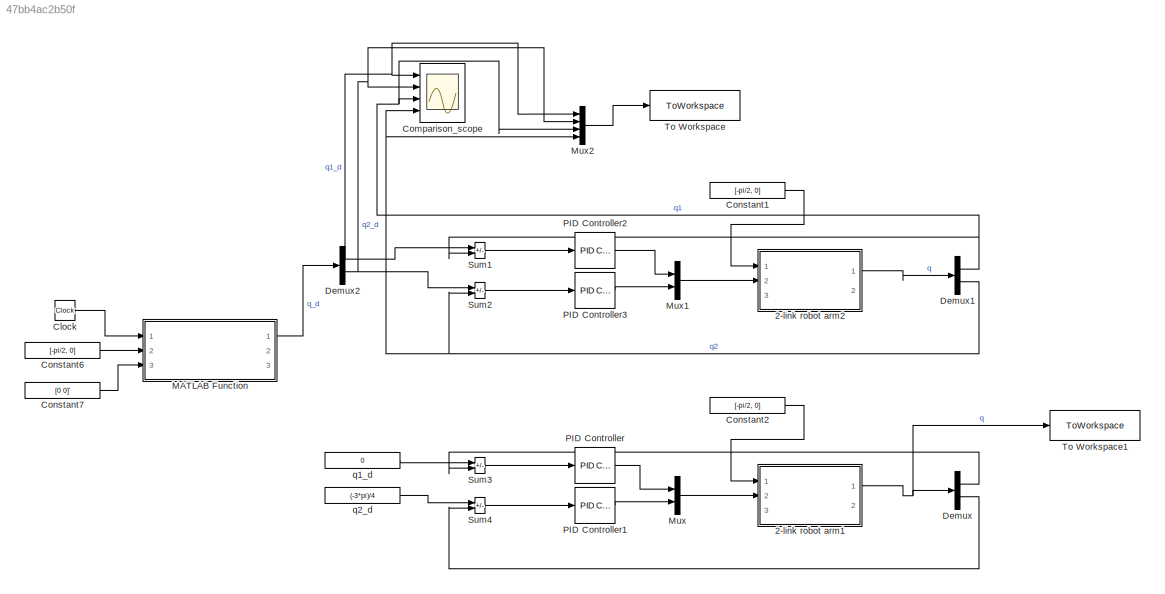
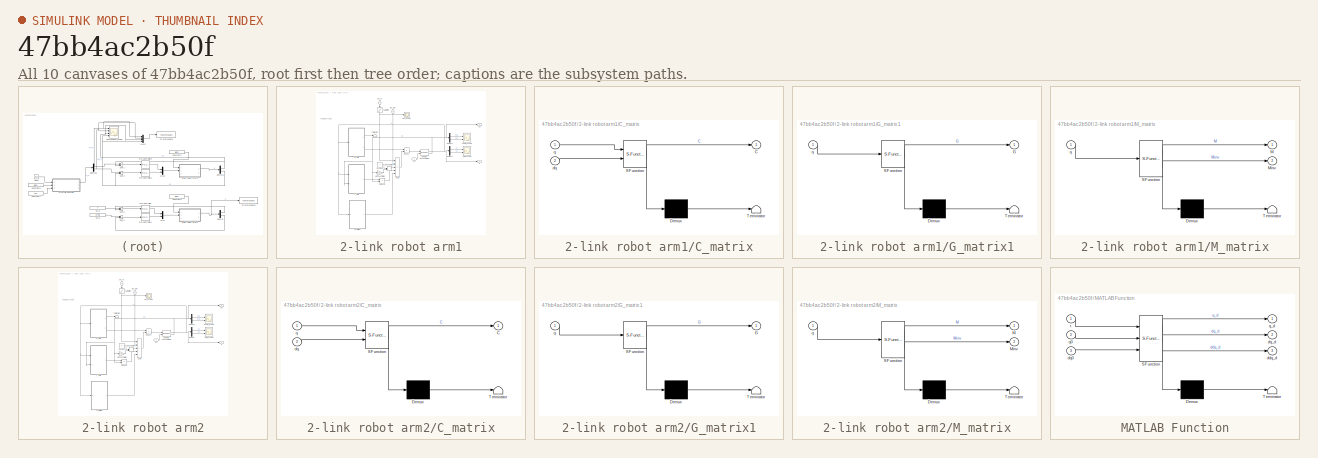
[diagram: thumbnail index - all 10 canvases of the model, root first then tree order]
MODEL slx_47bb4ac2b50f
KIND model
CONFIG AbsTol = auto
CONFIG EnableMultiTasking = off
CONFIG FixedStep = 1e-3
CONFIG MaxStep = auto
CONFIG MinStep = auto
CONFIG RelTol = 1e-3
CONFIG SampleTimeConstraint = Unconstrained
CONFIG SolverName = ode4
CONFIG StartTime = 0.0
CONFIG StopTime = 25
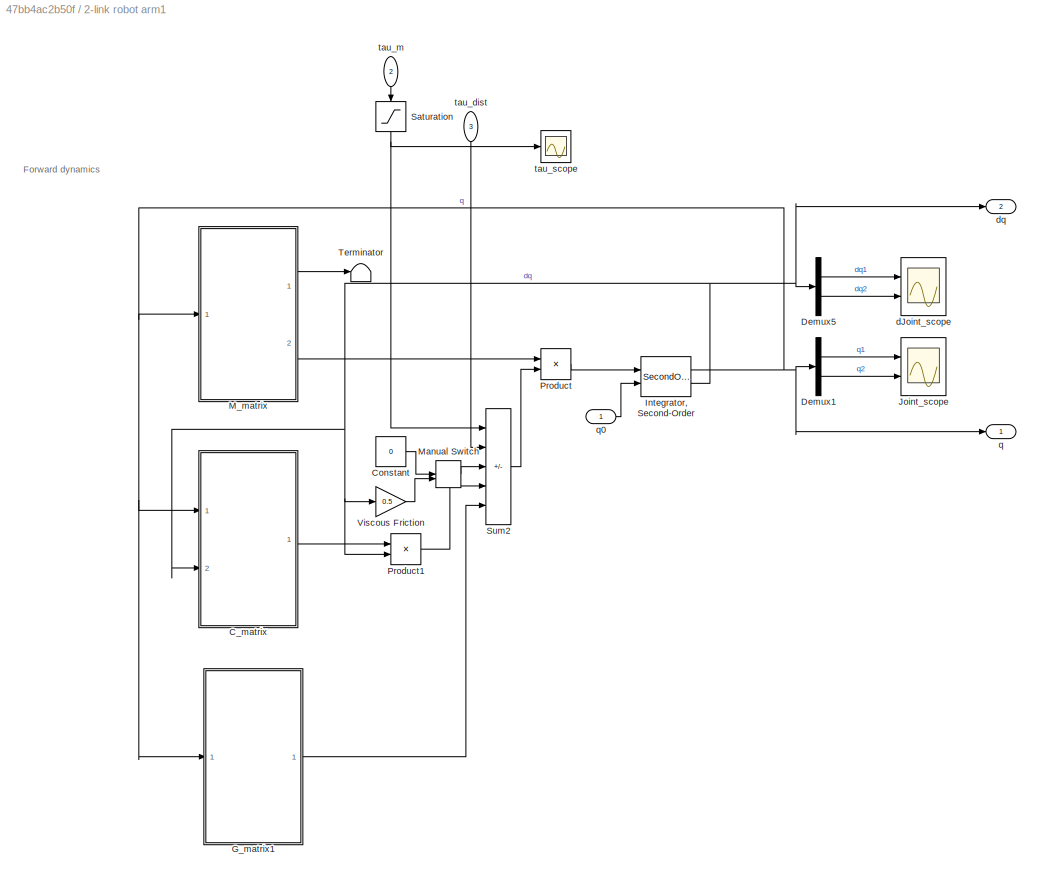
BLOCK [SubSystem] 2-link robot arm1
  Ports = [3, 2]
  RequestExecContextInheritance = off
BLOCK [SubSystem] 2-link robot arm1/C_matrix
  ErrorFcn = Stateflow.Translate.translate
  PermitHierarchicalResolution = ExplicitOnly
  Ports = [2, 1]
  RequestExecContextInheritance = off
  SFBlockType = MATLAB Function
  TreatAsAtomicUnit = on
BLOCK [Demux] 2-link robot arm1/C_matrix/ Demux 
  Outputs = 1
  Ports = [1, 1]
BLOCK [S-Function] 2-link robot arm1/C_matrix/ SFunction 
  EnableBusSupport = on
  FunctionName = sf_sfun
  Parameters = l1,lc2,m2
  PortCounts = [2 2]
  Ports = [2, 2]
  SFcnIsStateOwnerBlock = off
  SFunctionDeploymentMode = off
  Tag = Stateflow S-Function 1
BLOCK [Terminator] 2-link robot arm1/C_matrix/ Terminator 
BLOCK [Outport] 2-link robot arm1/C_matrix/C
  VectorParamsAs1DForOutWhenUnconnected = off
BLOCK [Inport] 2-link robot arm1/C_matrix/dq
  Port = 2
BLOCK [Inport] 2-link robot arm1/C_matrix/q
BLOCK [Constant] 2-link robot arm1/Constant
  Value = 0
BLOCK [Demux] 2-link robot arm1/Demux1
  Outputs = 2
  Ports = [1, 2]
BLOCK [Demux] 2-link robot arm1/Demux5
  Outputs = 2
  Ports = [1, 2]
BLOCK [SubSystem] 2-link robot arm1/G_matrix1
  ErrorFcn = Stateflow.Translate.translate
  PermitHierarchicalResolution = ExplicitOnly
  Ports = [1, 1]
  RequestExecContextInheritance = off
  SFBlockType = MATLAB Function
  TreatAsAtomicUnit = on
BLOCK [Demux] 2-link robot arm1/G_matrix1/ Demux 
  Outputs = 1
  Ports = [1, 1]
BLOCK [S-Function] 2-link robot arm1/G_matrix1/ SFunction 
  EnableBusSupport = on
  FunctionName = sf_sfun
  Parameters = g,l1,lc1,lc2,m1,m2
  PortCounts = [1 2]
  Ports = [1, 2]
  SFcnIsStateOwnerBlock = off
  SFunctionDeploymentMode = off
  Tag = Stateflow S-Function 2
BLOCK [Terminator] 2-link robot arm1/G_matrix1/ Terminator 
BLOCK [Outport] 2-link robot arm1/G_matrix1/G
  VectorParamsAs1DForOutWhenUnconnected = off
BLOCK [Inport] 2-link robot arm1/G_matrix1/q
BLOCK [SecondOrderIntegrator] 2-link robot arm1/Integrator, Second-Order
  ICSourceX = external
  Ports = [2, 2]
BLOCK [Scope] 2-link robot arm1/Joint_scope
  Floating = off
  NumInputPorts = 2
  Ports = [2]
  ScopeSpecificationString = Simulink.scopes.TimeScopeBlockCfg('CurrentConfiguration', extmgr.ConfigurationSet(extmgr.Configuration('Core','General UI',true,'FigureColor',[0 0 0]),extmgr.Configuration('Core','Source UI',true),extmgr.Configuration('Sources','WiredSimulink',true),extmgr.Configuration('Visuals','Time Domain',true,'SerializedDisplays',{struct('MinYLimReal','-4.92673','MaxYLimReal','3.00396','YLabelReal','q_i(t)',...<+1818ch>
BLOCK [SubSystem] 2-link robot arm1/M_matrix
  ErrorFcn = Stateflow.Translate.translate
  PermitHierarchicalResolution = ExplicitOnly
  Ports = [1, 2]
  RequestExecContextInheritance = off
  SFBlockType = MATLAB Function
  TreatAsAtomicUnit = on
BLOCK [Demux] 2-link robot arm1/M_matrix/ Demux 
  Outputs = 1
  Ports = [1, 1]
BLOCK [S-Function] 2-link robot arm1/M_matrix/ SFunction 
  EnableBusSupport = on
  FunctionName = sf_sfun
  Parameters = I1zz,I2zz,l1,lc1,lc2,m1,m2
  PortCounts = [1 3]
  Ports = [1, 3]
  SFcnIsStateOwnerBlock = off
  SFunctionDeploymentMode = off
  Tag = Stateflow S-Function 3
BLOCK [Terminator] 2-link robot arm1/M_matrix/ Terminator 
BLOCK [Outport] 2-link robot arm1/M_matrix/M
  VectorParamsAs1DForOutWhenUnconnected = off
BLOCK [Outport] 2-link robot arm1/M_matrix/Minv
  Port = 2
  VectorParamsAs1DForOutWhenUnconnected = off
BLOCK [Inport] 2-link robot arm1/M_matrix/q
BLOCK [ManualSwitch] 2-link robot arm1/Manual Switch
BLOCK [Product] 2-link robot arm1/Product
  Multiplication = Matrix(*)
  Ports = [2, 1]
BLOCK [Product] 2-link robot arm1/Product1
  Multiplication = Matrix(*)
  Ports = [2, 1]
BLOCK [Saturate] 2-link robot arm1/Saturation
  LowerLimit = tau_down
  NameLocation = left
  UpperLimit = tau_up
BLOCK [Sum] 2-link robot arm1/Sum2
  IconShape = rectangular
  Inputs = ++|---
  Ports = [5, 1]
BLOCK [Terminator] 2-link robot arm1/Terminator
BLOCK [Gain] 2-link robot arm1/Viscous Friction
  Gain = 0.5
BLOCK [Scope] 2-link robot arm1/dJoint_scope
  Floating = off
  NumInputPorts = 2
  Ports = [2]
  ScopeSpecificationString = Simulink.scopes.TimeScopeBlockCfg('CurrentConfiguration', extmgr.ConfigurationSet(extmgr.Configuration('Core','General UI',true,'FigureColor',[0 0 0]),extmgr.Configuration('Core','Source UI',true),extmgr.Configuration('Sources','WiredSimulink',true,'DataLoggingVariableName','ScopeData1'),extmgr.Configuration('Visuals','Time Domain',true,'SerializedDisplays',{struct('MinYLimReal','-23.61564','MaxYL...<+1865ch>
BLOCK [Outport] 2-link robot arm1/dq 
  Port = 2
BLOCK [Outport] 2-link robot arm1/q 
BLOCK [Inport] 2-link robot arm1/q0
BLOCK [Inport] 2-link robot arm1/tau_dist
  NameLocation = left
  Port = 3
BLOCK [Inport] 2-link robot arm1/tau_m
  NameLocation = left
  Port = 2
BLOCK [Scope] 2-link robot arm1/tau_scope
  Floating = off
  NumInputPorts = 1
  Ports = [1]
  ScopeSpecificationString = Simulink.scopes.TimeScopeBlockCfg('CurrentConfiguration', extmgr.ConfigurationSet(extmgr.Configuration('Core','General UI',true),extmgr.Configuration('Core','Source UI',true),extmgr.Configuration('Sources','WiredSimulink',true,'DataLoggingVariableName','ScopeData3'),extmgr.Configuration('Visuals','Time Domain',true,'SerializedDisplays',{struct('MinYLimReal','-28.47068','MaxYLimReal','20.6167','YLa...<+1479ch>
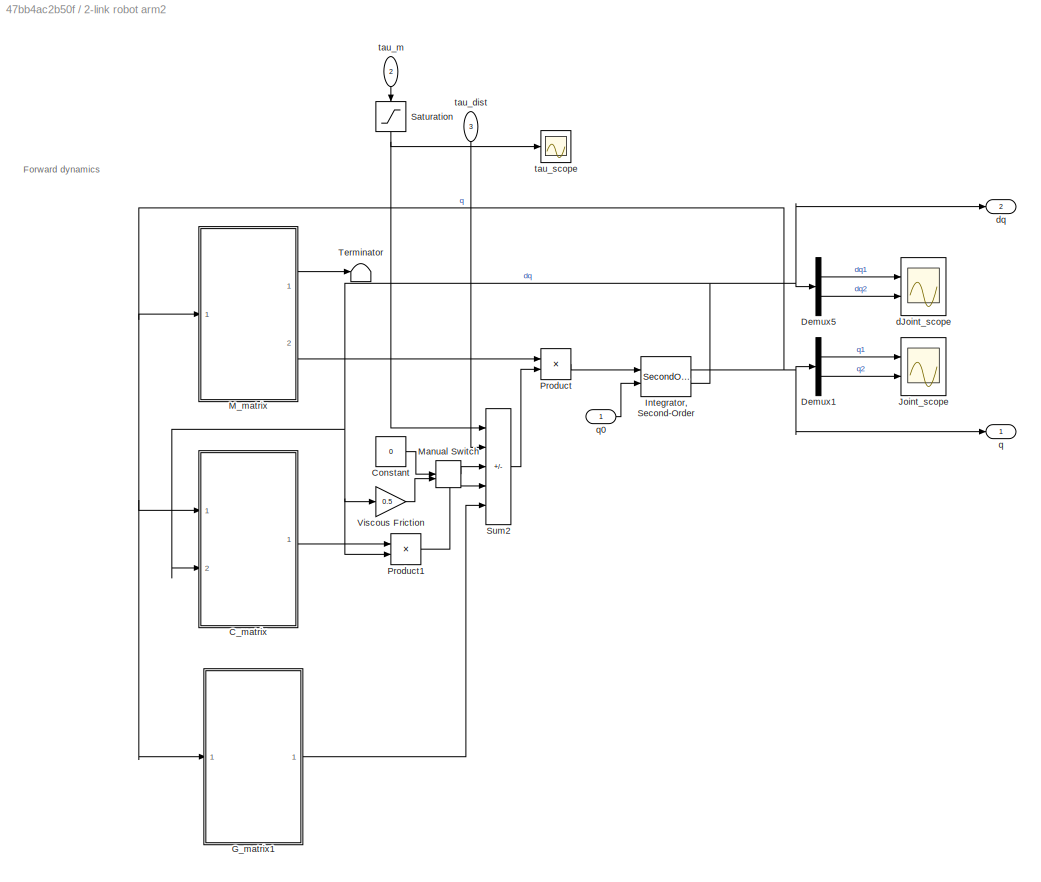
BLOCK [SubSystem] 2-link robot arm2
  Ports = [3, 2]
  RequestExecContextInheritance = off
BLOCK [SubSystem] 2-link robot arm2/C_matrix
  ErrorFcn = Stateflow.Translate.translate
  PermitHierarchicalResolution = ExplicitOnly
  Ports = [2, 1]
  RequestExecContextInheritance = off
  SFBlockType = MATLAB Function
  TreatAsAtomicUnit = on
BLOCK [Demux] 2-link robot arm2/C_matrix/ Demux 
  Outputs = 1
  Ports = [1, 1]
BLOCK [S-Function] 2-link robot arm2/C_matrix/ SFunction 
  EnableBusSupport = on
  FunctionName = sf_sfun
  Parameters = l1,lc2,m2
  PortCounts = [2 2]
  Ports = [2, 2]
  SFcnIsStateOwnerBlock = off
  SFunctionDeploymentMode = off
  Tag = Stateflow S-Function 4
BLOCK [Terminator] 2-link robot arm2/C_matrix/ Terminator 
BLOCK [Outport] 2-link robot arm2/C_matrix/C
  VectorParamsAs1DForOutWhenUnconnected = off
BLOCK [Inport] 2-link robot arm2/C_matrix/dq
  Port = 2
BLOCK [Inport] 2-link robot arm2/C_matrix/q
BLOCK [Constant] 2-link robot arm2/Constant
  Value = 0
BLOCK [Demux] 2-link robot arm2/Demux1
  Outputs = 2
  Ports = [1, 2]
BLOCK [Demux] 2-link robot arm2/Demux5
  Outputs = 2
  Ports = [1, 2]
BLOCK [SubSystem] 2-link robot arm2/G_matrix1
  ErrorFcn = Stateflow.Translate.translate
  PermitHierarchicalResolution = ExplicitOnly
  Ports = [1, 1]
  RequestExecContextInheritance = off
  SFBlockType = MATLAB Function
  TreatAsAtomicUnit = on
BLOCK [Demux] 2-link robot arm2/G_matrix1/ Demux 
  Outputs = 1
  Ports = [1, 1]
BLOCK [S-Function] 2-link robot arm2/G_matrix1/ SFunction 
  EnableBusSupport = on
  FunctionName = sf_sfun
  Parameters = g,l1,lc1,lc2,m1,m2
  PortCounts = [1 2]
  Ports = [1, 2]
  SFcnIsStateOwnerBlock = off
  SFunctionDeploymentMode = off
  Tag = Stateflow S-Function 5
BLOCK [Terminator] 2-link robot arm2/G_matrix1/ Terminator 
BLOCK [Outport] 2-link robot arm2/G_matrix1/G
  VectorParamsAs1DForOutWhenUnconnected = off
BLOCK [Inport] 2-link robot arm2/G_matrix1/q
BLOCK [SecondOrderIntegrator] 2-link robot arm2/Integrator, Second-Order
  ICSourceX = external
  Ports = [2, 2]
BLOCK [Scope] 2-link robot arm2/Joint_scope
  Floating = off
  NumInputPorts = 2
  Ports = [2]
  ScopeSpecificationString = Simulink.scopes.TimeScopeBlockCfg('CurrentConfiguration', extmgr.ConfigurationSet(extmgr.Configuration('Core','General UI',true,'FigureColor',[0 0 0]),extmgr.Configuration('Core','Source UI',true),extmgr.Configuration('Sources','WiredSimulink',true),extmgr.Configuration('Visuals','Time Domain',true,'SerializedDisplays',{struct('MinYLimReal','-4.92673','MaxYLimReal','3.00396','YLabelReal','q_i(t)',...<+1834ch>
BLOCK [SubSystem] 2-link robot arm2/M_matrix
  ErrorFcn = Stateflow.Translate.translate
  PermitHierarchicalResolution = ExplicitOnly
  Ports = [1, 2]
  RequestExecContextInheritance = off
  SFBlockType = MATLAB Function
  TreatAsAtomicUnit = on
BLOCK [Demux] 2-link robot arm2/M_matrix/ Demux 
  Outputs = 1
  Ports = [1, 1]
BLOCK [S-Function] 2-link robot arm2/M_matrix/ SFunction 
  EnableBusSupport = on
  FunctionName = sf_sfun
  Parameters = I1zz,I2zz,l1,lc1,lc2,m1,m2
  PortCounts = [1 3]
  Ports = [1, 3]
  SFcnIsStateOwnerBlock = off
  SFunctionDeploymentMode = off
  Tag = Stateflow S-Function 6
BLOCK [Terminator] 2-link robot arm2/M_matrix/ Terminator 
BLOCK [Outport] 2-link robot arm2/M_matrix/M
  VectorParamsAs1DForOutWhenUnconnected = off
BLOCK [Outport] 2-link robot arm2/M_matrix/Minv
  Port = 2
  VectorParamsAs1DForOutWhenUnconnected = off
BLOCK [Inport] 2-link robot arm2/M_matrix/q
BLOCK [ManualSwitch] 2-link robot arm2/Manual Switch
BLOCK [Product] 2-link robot arm2/Product
  Multiplication = Matrix(*)
  Ports = [2, 1]
BLOCK [Product] 2-link robot arm2/Product1
  Multiplication = Matrix(*)
  Ports = [2, 1]
BLOCK [Saturate] 2-link robot arm2/Saturation
  LowerLimit = tau_down
  NameLocation = left
  UpperLimit = tau_up
BLOCK [Sum] 2-link robot arm2/Sum2
  IconShape = rectangular
  Inputs = ++|---
  Ports = [5, 1]
BLOCK [Terminator] 2-link robot arm2/Terminator
BLOCK [Gain] 2-link robot arm2/Viscous Friction
  Gain = 0.5
BLOCK [Scope] 2-link robot arm2/dJoint_scope
  Floating = off
  NumInputPorts = 2
  Ports = [2]
  ScopeSpecificationString = Simulink.scopes.TimeScopeBlockCfg('CurrentConfiguration', extmgr.ConfigurationSet(extmgr.Configuration('Core','General UI',true,'FigureColor',[0 0 0]),extmgr.Configuration('Core','Source UI',true),extmgr.Configuration('Sources','WiredSimulink',true,'DataLoggingVariableName','ScopeData1'),extmgr.Configuration('Visuals','Time Domain',true,'SerializedDisplays',{struct('MinYLimReal','-23.61564','MaxYL...<+1865ch>
BLOCK [Outport] 2-link robot arm2/dq 
  Port = 2
BLOCK [Outport] 2-link robot arm2/q 
BLOCK [Inport] 2-link robot arm2/q0
BLOCK [Inport] 2-link robot arm2/tau_dist
  NameLocation = left
  Port = 3
BLOCK [Inport] 2-link robot arm2/tau_m
  NameLocation = left
  Port = 2
BLOCK [Scope] 2-link robot arm2/tau_scope
  Floating = off
  NumInputPorts = 1
  Ports = [1]
  ScopeSpecificationString = Simulink.scopes.TimeScopeBlockCfg('CurrentConfiguration', extmgr.ConfigurationSet(extmgr.Configuration('Core','General UI',true),extmgr.Configuration('Core','Source UI',true),extmgr.Configuration('Sources','WiredSimulink',true,'DataLoggingVariableName','ScopeData3'),extmgr.Configuration('Visuals','Time Domain',true,'SerializedDisplays',{struct('MinYLimReal','-28.47068','MaxYLimReal','20.6167','YLa...<+1479ch>
BLOCK [Clock] Clock
BLOCK [Scope] Comparison_scope
  Floating = off
  NumInputPorts = 4
  Ports = [4]
  ScopeSpecificationString = Simulink.scopes.TimeScopeBlockCfg('CurrentConfiguration', extmgr.ConfigurationSet(extmgr.Configuration('Core','General UI',true,'FigureColor',[0 0 0]),extmgr.Configuration('Core','Source UI',true),extmgr.Configuration('Sources','WiredSimulink',true,'DataLoggingVariableName','ScopeData1'),extmgr.Configuration('Visuals','Time Domain',true,'SerializedDisplays',{struct('MinYLimReal','-2.55638','MaxYLi...<+1897ch>
BLOCK [Constant] Constant1
  Value = [-pi/2, 0]
BLOCK [Constant] Constant2
  Value = [-pi/2, 0]
BLOCK [Constant] Constant6
  Value = [-pi/2, 0]
BLOCK [Constant] Constant7
  Value = [0 0]'
BLOCK [Demux] Demux
  Outputs = 2
  Ports = [1, 2]
BLOCK [Demux] Demux1
  Outputs = 2
  Ports = [1, 2]
BLOCK [Demux] Demux2
  Outputs = 2
  Ports = [1, 2]
BLOCK [SubSystem] MATLAB Function
  ErrorFcn = Stateflow.Translate.translate
  PermitHierarchicalResolution = ExplicitOnly
  Ports = [3, 3]
  RequestExecContextInheritance = off
  SFBlockType = MATLAB Function
  TreatAsAtomicUnit = on
BLOCK [Demux] MATLAB Function/ Demux 
  Outputs = 1
  Ports = [1, 1]
BLOCK [S-Function] MATLAB Function/ SFunction 
  EnableBusSupport = on
  FunctionName = sf_sfun
  PortCounts = [3 4]
  Ports = [3, 4]
  SFcnIsStateOwnerBlock = off
  SFunctionDeploymentMode = off
  Tag = Stateflow S-Function 10
BLOCK [Terminator] MATLAB Function/ Terminator 
BLOCK [Outport] MATLAB Function/ddq_d
  Port = 3
  VectorParamsAs1DForOutWhenUnconnected = off
BLOCK [Inport] MATLAB Function/dq0
  Port = 3
BLOCK [Outport] MATLAB Function/dq_d
  Port = 2
  VectorParamsAs1DForOutWhenUnconnected = off
BLOCK [Inport] MATLAB Function/q0
  Port = 2
BLOCK [Outport] MATLAB Function/q_d
  VectorParamsAs1DForOutWhenUnconnected = off
BLOCK [Inport] MATLAB Function/t
BLOCK [Mux] Mux
  DisplayOption = bar
  Inputs = 2
  Ports = [2, 1]
BLOCK [Mux] Mux1
  DisplayOption = bar
  Inputs = 2
  Ports = [2, 1]
BLOCK [Mux] Mux2
  DisplayOption = bar
  Ports = [4, 1]
BLOCK [Reference] PID Controller  REF=slpidlib/PID Controller
  Ports = [1, 1]
  SourceBlock = slpidlib/PID Controller
  SourceProductBaseCode = SL
  SourceType = PID 1dof
BLOCK [Reference] PID Controller1  REF=slpidlib/PID Controller
  Ports = [1, 1]
  SourceBlock = slpidlib/PID Controller
  SourceProductBaseCode = SL
  SourceType = PID 1dof
BLOCK [Reference] PID Controller2  REF=slpidlib/PID Controller
  Ports = [1, 1]
  SourceBlock = slpidlib/PID Controller
  SourceProductBaseCode = SL
  SourceType = PID 1dof
BLOCK [Reference] PID Controller3  REF=slpidlib/PID Controller
  Ports = [1, 1]
  SourceBlock = slpidlib/PID Controller
  SourceProductBaseCode = SL
  SourceType = PID 1dof
BLOCK [Sum] Sum1
  IconShape = rectangular
  Inputs = +-
  Ports = [2, 1]
BLOCK [Sum] Sum2
  IconShape = rectangular
  Inputs = +-
  Ports = [2, 1]
BLOCK [Sum] Sum3
  IconShape = rectangular
  Inputs = +-
  Ports = [2, 1]
BLOCK [Sum] Sum4
  IconShape = rectangular
  Inputs = +-
  Ports = [2, 1]
BLOCK [ToWorkspace] To Workspace
  FixptAsFi = on
  MaxDataPoints = inf
  Ports = [1]
  SampleTime = -1
  SaveFormat = Timeseries
  VariableName = task12
BLOCK [ToWorkspace] To Workspace1
  FixptAsFi = on
  MaxDataPoints = inf
  Ports = [1]
  SampleTime = -1
  SaveFormat = Timeseries
  VariableName = task11
BLOCK [Constant] q1_d
  Value = 0
BLOCK [Constant] q2_d
  Value = (-3*pi)/4
ANNOTATION 2-link robot arm1: Forward dynamics
ANNOTATION 2-link robot arm2: Forward dynamics
LINE 2-link robot arm1/C_matrix:1 -> 2-link robot arm1/Product1:1
LINE 2-link robot arm1/Constant:1 -> 2-link robot arm1/Manual Switch:1
LINE 2-link robot arm1/Demux1:1 -> 2-link robot arm1/Joint_scope:1
LINE 2-link robot arm1/Demux1:2 -> 2-link robot arm1/Joint_scope:2
LINE 2-link robot arm1/Demux5:1 -> 2-link robot arm1/dJoint_scope:1
LINE 2-link robot arm1/Demux5:2 -> 2-link robot arm1/dJoint_scope:2
LINE 2-link robot arm1/G_matrix1:1 -> 2-link robot arm1/Sum2:5
NET 2-link robot arm1/Integrator, Second-Order:1 -> 2-link robot arm1/C_matrix:1, 2-link robot arm1/Demux1:1, 2-link robot arm1/G_matrix1:1, 2-link robot arm1/M_matrix:1, 2-link robot arm1/q :1
NET 2-link robot arm1/Integrator, Second-Order:2 -> 2-link robot arm1/C_matrix:2, 2-link robot arm1/Demux5:1, 2-link robot arm1/Product1:2, 2-link robot arm1/Viscous Friction:1, 2-link robot arm1/dq :1
LINE 2-link robot arm1/M_matrix:1 -> 2-link robot arm1/Terminator:1
LINE 2-link robot arm1/M_matrix:2 -> 2-link robot arm1/Product:1
LINE 2-link robot arm1/Manual Switch:1 -> 2-link robot arm1/Sum2:3
LINE 2-link robot arm1/Product1:1 -> 2-link robot arm1/Sum2:4
LINE 2-link robot arm1/Product:1 -> 2-link robot arm1/Integrator, Second-Order:1
NET 2-link robot arm1/Saturation:1 -> 2-link robot arm1/Sum2:1, 2-link robot arm1/tau_scope:1
LINE 2-link robot arm1/Sum2:1 -> 2-link robot arm1/Product:2
LINE 2-link robot arm1/Viscous Friction:1 -> 2-link robot arm1/Manual Switch:2
LINE 2-link robot arm1/q0:1 -> 2-link robot arm1/Integrator, Second-Order:2
LINE 2-link robot arm1/tau_dist:1 -> 2-link robot arm1/Sum2:2
LINE 2-link robot arm1/tau_m:1 -> 2-link robot arm1/Saturation:1
NET 2-link robot arm1:1 -> Demux:1, To Workspace1:1
LINE 2-link robot arm2/C_matrix:1 -> 2-link robot arm2/Product1:1
LINE 2-link robot arm2/Constant:1 -> 2-link robot arm2/Manual Switch:1
LINE 2-link robot arm2/Demux1:1 -> 2-link robot arm2/Joint_scope:1
LINE 2-link robot arm2/Demux1:2 -> 2-link robot arm2/Joint_scope:2
LINE 2-link robot arm2/Demux5:1 -> 2-link robot arm2/dJoint_scope:1
LINE 2-link robot arm2/Demux5:2 -> 2-link robot arm2/dJoint_scope:2
LINE 2-link robot arm2/G_matrix1:1 -> 2-link robot arm2/Sum2:5
NET 2-link robot arm2/Integrator, Second-Order:1 -> 2-link robot arm2/C_matrix:1, 2-link robot arm2/Demux1:1, 2-link robot arm2/G_matrix1:1, 2-link robot arm2/M_matrix:1, 2-link robot arm2/q :1
NET 2-link robot arm2/Integrator, Second-Order:2 -> 2-link robot arm2/C_matrix:2, 2-link robot arm2/Demux5:1, 2-link robot arm2/Product1:2, 2-link robot arm2/Viscous Friction:1, 2-link robot arm2/dq :1
LINE 2-link robot arm2/M_matrix:1 -> 2-link robot arm2/Terminator:1
LINE 2-link robot arm2/M_matrix:2 -> 2-link robot arm2/Product:1
LINE 2-link robot arm2/Manual Switch:1 -> 2-link robot arm2/Sum2:3
LINE 2-link robot arm2/Product1:1 -> 2-link robot arm2/Sum2:4
LINE 2-link robot arm2/Product:1 -> 2-link robot arm2/Integrator, Second-Order:1
NET 2-link robot arm2/Saturation:1 -> 2-link robot arm2/Sum2:1, 2-link robot arm2/tau_scope:1
LINE 2-link robot arm2/Sum2:1 -> 2-link robot arm2/Product:2
LINE 2-link robot arm2/Viscous Friction:1 -> 2-link robot arm2/Manual Switch:2
LINE 2-link robot arm2/q0:1 -> 2-link robot arm2/Integrator, Second-Order:2
LINE 2-link robot arm2/tau_dist:1 -> 2-link robot arm2/Sum2:2
LINE 2-link robot arm2/tau_m:1 -> 2-link robot arm2/Saturation:1
LINE 2-link robot arm2:1 -> Demux1:1
LINE Clock:1 -> MATLAB Function:1
LINE Constant1:1 -> 2-link robot arm2:1
LINE Constant2:1 -> 2-link robot arm1:1
LINE Constant6:1 -> MATLAB Function:2
LINE Constant7:1 -> MATLAB Function:3
NET Demux1:1 -> Comparison_scope:3, Mux2:3, Sum1:2
NET Demux1:2 -> Comparison_scope:4, Mux2:4, Sum2:2
NET Demux2:1 -> Comparison_scope:1, Mux2:1, Sum1:1
NET Demux2:2 -> Comparison_scope:2, Mux2:2, Sum2:1
LINE Demux:1 -> Sum3:2
LINE Demux:2 -> Sum4:2
LINE MATLAB Function:1 -> Demux2:1
LINE Mux1:1 -> 2-link robot arm2:2
LINE Mux2:1 -> To Workspace:1
LINE Mux:1 -> 2-link robot arm1:2
LINE PID Controller1:1 -> Mux:2
LINE PID Controller2:1 -> Mux1:1
LINE PID Controller3:1 -> Mux1:2
LINE PID Controller:1 -> Mux:1
LINE Sum1:1 -> PID Controller2:1
LINE Sum2:1 -> PID Controller3:1
LINE Sum3:1 -> PID Controller:1
LINE Sum4:1 -> PID Controller1:1
LINE q1_d:1 -> Sum3:1
LINE q2_d:1 -> Sum4:1
note: NET lines group one-source signal fan-out (src -> all destinations, sorted); 1:1 wires keep LINE
CHART 2-link
 robot arm1/C_matrix states=1 transitions=1
  STATE_LABEL 'eML_blk_kernel()'
  STATE_LABEL 'SCRIPT:\nfunction C = C_matrix(q,dq, l1, lc2, m2)\n%#codegen\n\n%    This function was generated by the Symbolic Math Toolbox version 8.3.\n%    05-Nov-2019 15:18:30\nq1 = q(1);\nq2 = q(2);\ndq1 = dq(1);\ndq2 = dq(2);\nt2 = sin(q2);\nC = reshape([-dq2.*l1.*lc2.*m2.*t2,dq1.*l1.*lc2.*m2.*t2,-l1.*lc2.*m2.*t2.*(dq1+dq2),0.0],[2,2]);\n'
CHART 2-link
 robot arm1/G_matrix1 states=1 transitions=1
  STATE_LABEL 'eML_blk_kernel()'
  STATE_LABEL 'SCRIPT:\nfunction G = G_matrix(q, g, l1, lc1, lc2, m1, m2)\n%#codegen\n\n%    This function was generated by the Symbolic Math Toolbox version 8.3.\n%    05-Nov-2019 15:18:30\nq1 = q(1);\nq2 = q(2);\nt2 = cos(q1);\nt3 = q1+q2;\nt4 = cos(t3);\nG = [g.*m2.*(l1.*t2+lc2.*t4)+g.*lc1.*m1.*t2;g.*lc2.*m2.*t4];\n'
CHART 2-link
 robot arm1/M_matrix states=1 transitions=1
  STATE_LABEL 'eML_blk_kernel()'
  STATE_LABEL 'SCRIPT:\nfunction [M, Minv] = M_matrix(q, I1zz, I2zz, l1, lc1, lc2, m1, m2)\n%#codegen\n\n%    This function was generated by the Symbolic Math Toolbox version 8.3.\n%    05-Nov-2019 15:18:29\nq1 = q(1);\nq2 = q(2);\nt2 = cos(q2);\nt3 = lc2.^2;\nt4 = m2.*t3;\nt5 = l1.*lc2.*m2.*t2;\nt6 = I2zz+t4+t5;\nM = reshape([I1zz+t5+t6+l1.^2.*m2+lc1.^2.*m1,t6,t6,I2zz+t4],[2,2]);\nMinv = pinv(M);'
CHART 2-link
 robot arm2/C_matrix states=1 transitions=1
  STATE_LABEL 'eML_blk_kernel()'
  STATE_LABEL 'SCRIPT:\nfunction C = C_matrix(q,dq, l1, lc2, m2)\n%#codegen\n\n%    This function was generated by the Symbolic Math Toolbox version 8.3.\n%    05-Nov-2019 15:18:30\nq1 = q(1);\nq2 = q(2);\ndq1 = dq(1);\ndq2 = dq(2);\nt2 = sin(q2);\nC = reshape([-dq2.*l1.*lc2.*m2.*t2,dq1.*l1.*lc2.*m2.*t2,-l1.*lc2.*m2.*t2.*(dq1+dq2),0.0],[2,2]);\n'
CHART 2-link
 robot arm2/G_matrix1 states=1 transitions=1
  STATE_LABEL 'eML_blk_kernel()'
  STATE_LABEL 'SCRIPT:\nfunction G = G_matrix(q, g, l1, lc1, lc2, m1, m2)\n%#codegen\n\n%    This function was generated by the Symbolic Math Toolbox version 8.3.\n%    05-Nov-2019 15:18:30\nq1 = q(1);\nq2 = q(2);\nt2 = cos(q1);\nt3 = q1+q2;\nt4 = cos(t3);\nG = [g.*m2.*(l1.*t2+lc2.*t4)+g.*lc1.*m1.*t2;g.*lc2.*m2.*t4];\n'
CHART 2-link
 robot arm2/M_matrix states=1 transitions=1
  STATE_LABEL 'eML_blk_kernel()'
  STATE_LABEL 'SCRIPT:\nfunction [M, Minv] = M_matrix(q, I1zz, I2zz, l1, lc1, lc2, m1, m2)\n%#codegen\n\n%    This function was generated by the Symbolic Math Toolbox version 8.3.\n%    05-Nov-2019 15:18:29\nq1 = q(1);\nq2 = q(2);\nt2 = cos(q2);\nt3 = lc2.^2;\nt4 = m2.*t3;\nt5 = l1.*lc2.*m2.*t2;\nt6 = I2zz+t4+t5;\nM = reshape([I1zz+t5+t6+l1.^2.*m2+lc1.^2.*m1,t6,t6,I2zz+t4],[2,2]);\nMinv = pinv(M);'
CHART MATLAB Function states=1 transitions=1
  STATE_LABEL 'eML_blk_kernel()'
  STATE_LABEL 'SCRIPT:\nfunction [q_d, dq_d, ddq_d] = desired_traj(t,q0,dq0)\n    A = 5*[1; 1];\n    B = 5*[1; 1];\n    w = 2*pi*1;\n\n    q_d   = -A./w^2*sin(w*t) -B./(2*w)^2*cos(2*w*t) + dq0*t + q0;\n    dq_d  = -A./w*cos(w*t) + B./(2*w)*sin(2*w*t) + dq0;\n    ddq_d = A*sin(w*t) + B*cos(2*w*t);\nend\n'
CHART  states=0 transitions=0
CHART  states=0 transitions=0
CHART  states=0 transitions=0
CHART  states=0 transitions=0
CHART  states=0 transitions=0
CHART  states=0 transitions=0
CHART  states=0 transitions=0
